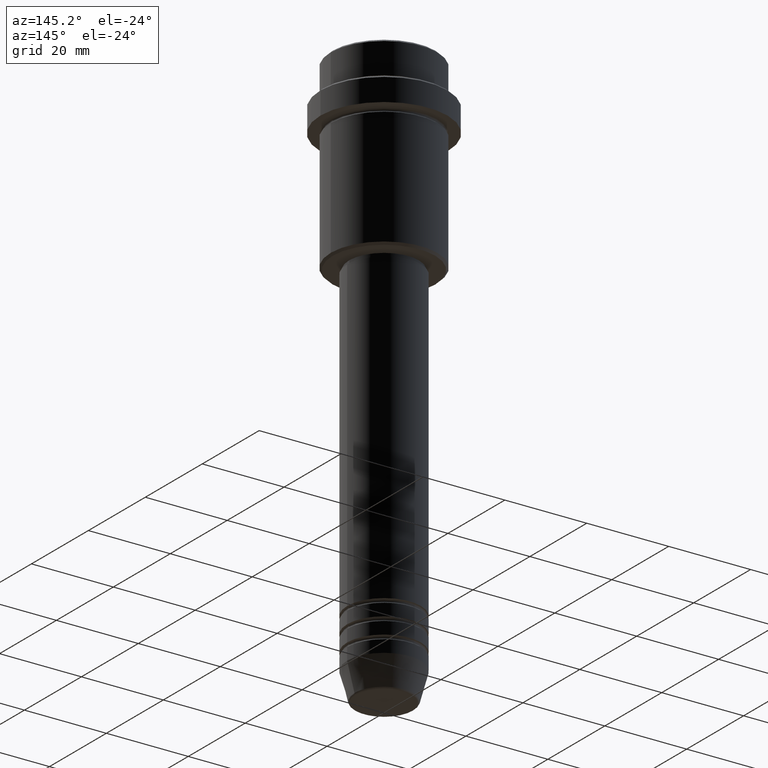
[diagram: clean part render]
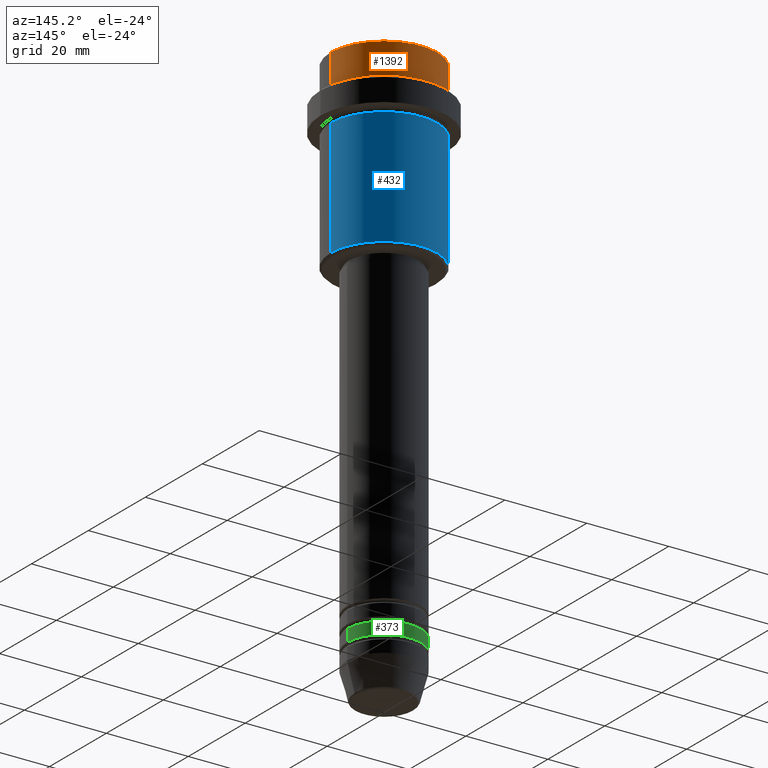
[diagram: same view with three faces highlighted in distinct colors, each labeled with its STEP entity id]
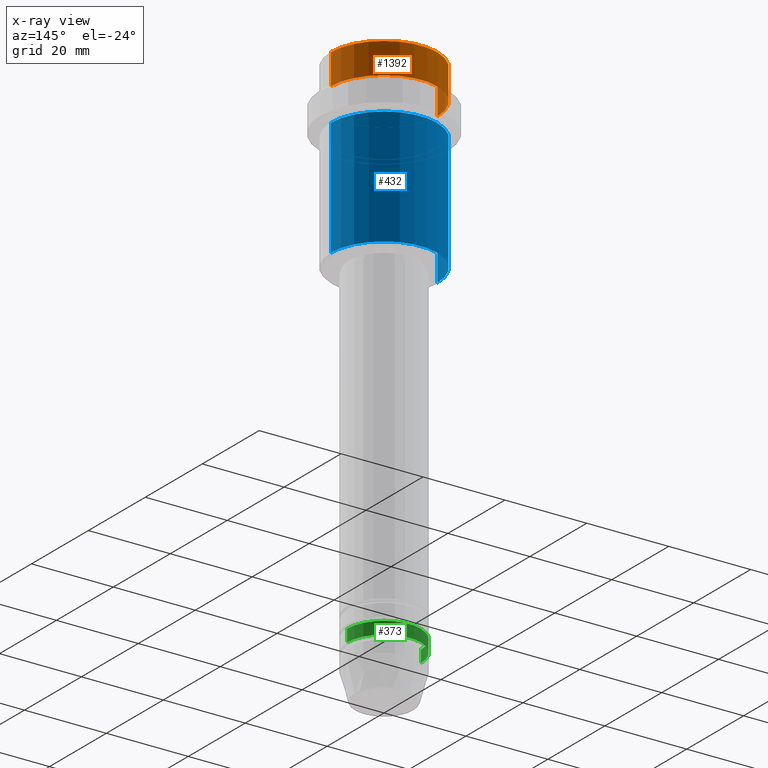
[diagram: x-ray of the same camera — body ghosted, the three highlighted faces saturated]
A machine part, auxiliary view with three faces highlighted in distinct colors.
The next image is the same camera in x-ray (body ghosted, the three faces saturated) — at least one of them is partly hidden behind the body in this view.
Their STEP definitions:

[orange] entity #1392 — the highlighted cylindrical surface (partial cylindrical patch) has radius 13 mm, axis along (-0, -0, 1).
#39 = DIRECTION ( 'NONE',  ( -0.000000000000000000, -0.000000000000000000, 1.000000000000000000 ) ) ;
#70 = VERTEX_POINT ( 'NONE', #1298 ) ;
#79 = AXIS2_PLACEMENT_3D ( 'NONE', #347, #1192, #1330 ) ;
#158 = CARTESIAN_POINT ( 'NONE',  ( -12.99999999999999822, 1.592040838891558898E-15, -7.999999999999998224 ) ) ;
#260 = VECTOR ( 'NONE', #1395, 1000.000000000000000 ) ;
#283 = ORIENTED_EDGE ( 'NONE', *, *, #849, .T. ) ;
#308 = AXIS2_PLACEMENT_3D ( 'NONE', #365, #39, #1351 ) ;
#343 = EDGE_CURVE ( 'NONE', #552, #70, #1195, .T. ) ;
#347 = CARTESIAN_POINT ( 'NONE',  ( 0.000000000000000000, 0.000000000000000000, 0.000000000000000000 ) ) ;
#365 = CARTESIAN_POINT ( 'NONE',  ( 0.000000000000000000, 0.000000000000000000, -7.999999999999998224 ) ) ;
#471 = VECTOR ( 'NONE', #1310, 1000.000000000000000 ) ;
#485 = FACE_OUTER_BOUND ( 'NONE', #950, .T. ) ;
#552 = VERTEX_POINT ( 'NONE', #582 ) ;
#582 = CARTESIAN_POINT ( 'NONE',  ( 12.99999999999999822, 0.000000000000000000, -7.999999999999998224 ) ) ;
#597 = EDGE_CURVE ( 'NONE', #552, #954, #830, .T. ) ;
#599 = CARTESIAN_POINT ( 'NONE',  ( 12.99999999999999822, 0.000000000000000000, 0.000000000000000000 ) ) ;
#649 = EDGE_CURVE ( 'NONE', #954, #777, #1413, .T. ) ;
#777 = VERTEX_POINT ( 'NONE', #911 ) ;
#780 = DIRECTION ( 'NONE',  ( 1.000000000000000000, 0.000000000000000000, 0.000000000000000000 ) ) ;
#830 = CIRCLE ( 'NONE', #308, 12.99999999999999822 ) ;
#849 = EDGE_CURVE ( 'NONE', #777, #70, #1312, .T. ) ;
#911 = CARTESIAN_POINT ( 'NONE',  ( -12.99999999999999822, 1.592040838891558898E-15, -0.4999999999999900080 ) ) ;
#920 = ORIENTED_EDGE ( 'NONE', *, *, #597, .T. ) ;
#950 = EDGE_LOOP ( 'NONE', ( #920, #1352, #283, #1177 ) ) ;
#954 = VERTEX_POINT ( 'NONE', #158 ) ;
#1079 = AXIS2_PLACEMENT_3D ( 'NONE', #1327, #1322, #780 ) ;
#1107 = CYLINDRICAL_SURFACE ( 'NONE', #79, 12.99999999999999822 ) ;
#1177 = ORIENTED_EDGE ( 'NONE', *, *, #343, .F. ) ;
#1192 = DIRECTION ( 'NONE',  ( -0.000000000000000000, -0.000000000000000000, 1.000000000000000000 ) ) ;
#1195 = LINE ( 'NONE', #599, #471 ) ;
#1298 = CARTESIAN_POINT ( 'NONE',  ( 12.99999999999999822, 0.000000000000000000, -0.4999999999999900080 ) ) ;
#1310 = DIRECTION ( 'NONE',  ( -0.000000000000000000, -0.000000000000000000, 1.000000000000000000 ) ) ;
#1312 = CIRCLE ( 'NONE', #1079, 12.99999999999999822 ) ;
#1322 = DIRECTION ( 'NONE',  ( 0.000000000000000000, 0.000000000000000000, -1.000000000000000000 ) ) ;
#1327 = CARTESIAN_POINT ( 'NONE',  ( 0.000000000000000000, 0.000000000000000000, -0.4999999999999900080 ) ) ;
#1330 = DIRECTION ( 'NONE',  ( 1.000000000000000000, 0.000000000000000000, 0.000000000000000000 ) ) ;
#1351 = DIRECTION ( 'NONE',  ( 1.000000000000000000, 0.000000000000000000, 0.000000000000000000 ) ) ;
#1352 = ORIENTED_EDGE ( 'NONE', *, *, #649, .T. ) ;
#1392 = ADVANCED_FACE ( 'NONE', ( #485 ), #1107, .T. ) ;
#1395 = DIRECTION ( 'NONE',  ( -0.000000000000000000, -0.000000000000000000, 1.000000000000000000 ) ) ;
#1406 = CARTESIAN_POINT ( 'NONE',  ( -12.99999999999999822, 1.592040838891558898E-15, 0.000000000000000000 ) ) ;
#1413 = LINE ( 'NONE', #1406, #260 ) ;

[blue] entity #432 — the highlighted cylindrical surface (partial cylindrical patch) has radius 13 mm, axis along (-0, -0, 1).
#82 = CARTESIAN_POINT ( 'NONE',  ( 0.000000000000000000, 0.000000000000000000, -16.00000000000000000 ) ) ;
#99 = LINE ( 'NONE', #857, #333 ) ;
#118 = AXIS2_PLACEMENT_3D ( 'NONE', #847, #1062, #323 ) ;
#139 = CARTESIAN_POINT ( 'NONE',  ( 0.000000000000000000, 0.000000000000000000, 0.000000000000000000 ) ) ;
#170 = EDGE_CURVE ( 'NONE', #1090, #895, #564, .T. ) ;
#201 = DIRECTION ( 'NONE',  ( -0.000000000000000000, -0.000000000000000000, 1.000000000000000000 ) ) ;
#206 = DIRECTION ( 'NONE',  ( 1.000000000000000000, 0.000000000000000000, 0.000000000000000000 ) ) ;
#323 = DIRECTION ( 'NONE',  ( -1.000000000000000000, 0.000000000000000000, 0.000000000000000000 ) ) ;
#333 = VECTOR ( 'NONE', #422, 1000.000000000000000 ) ;
#380 = AXIS2_PLACEMENT_3D ( 'NONE', #139, #860, #1231 ) ;
#422 = DIRECTION ( 'NONE',  ( -0.000000000000000000, -0.000000000000000000, 1.000000000000000000 ) ) ;
#432 = ADVANCED_FACE ( 'NONE', ( #1225 ), #756, .T. ) ;
#465 = CARTESIAN_POINT ( 'NONE',  ( -13.00000000000000000, 1.592040838891559095E-15, -44.50000000000002842 ) ) ;
#468 = ORIENTED_EDGE ( 'NONE', *, *, #1076, .F. ) ;
#564 = CIRCLE ( 'NONE', #1126, 13.00000000000000000 ) ;
#584 = EDGE_LOOP ( 'NONE', ( #925, #819, #622, #468 ) ) ;
#610 = CIRCLE ( 'NONE', #118, 13.00000000000000000 ) ;
#612 = VECTOR ( 'NONE', #1142, 1000.000000000000000 ) ;
#615 = VERTEX_POINT ( 'NONE', #621 ) ;
#621 = CARTESIAN_POINT ( 'NONE',  ( 13.00000000000000000, 0.000000000000000000, -44.50000000000002842 ) ) ;
#622 = ORIENTED_EDGE ( 'NONE', *, *, #170, .F. ) ;
#661 = EDGE_CURVE ( 'NONE', #1261, #895, #99, .T. ) ;
#714 = EDGE_CURVE ( 'NONE', #615, #1261, #610, .T. ) ;
#756 = CYLINDRICAL_SURFACE ( 'NONE', #380, 13.00000000000000000 ) ;
#757 = CARTESIAN_POINT ( 'NONE',  ( 13.00000000000000000, 0.000000000000000000, -16.00000000000000000 ) ) ;
#819 = ORIENTED_EDGE ( 'NONE', *, *, #661, .T. ) ;
#820 = CARTESIAN_POINT ( 'NONE',  ( 13.00000000000000000, 0.000000000000000000, 0.000000000000000000 ) ) ;
#847 = CARTESIAN_POINT ( 'NONE',  ( 0.000000000000000000, 0.000000000000000000, -44.50000000000002842 ) ) ;
#857 = CARTESIAN_POINT ( 'NONE',  ( -13.00000000000000000, 1.592040838891559095E-15, 0.000000000000000000 ) ) ;
#860 = DIRECTION ( 'NONE',  ( -0.000000000000000000, -0.000000000000000000, 1.000000000000000000 ) ) ;
#895 = VERTEX_POINT ( 'NONE', #899 ) ;
#899 = CARTESIAN_POINT ( 'NONE',  ( -13.00000000000000000, 1.592040838891559095E-15, -16.00000000000000000 ) ) ;
#925 = ORIENTED_EDGE ( 'NONE', *, *, #714, .T. ) ;
#933 = LINE ( 'NONE', #820, #612 ) ;
#1062 = DIRECTION ( 'NONE',  ( -0.000000000000000000, -0.000000000000000000, 1.000000000000000000 ) ) ;
#1076 = EDGE_CURVE ( 'NONE', #615, #1090, #933, .T. ) ;
#1090 = VERTEX_POINT ( 'NONE', #757 ) ;
#1126 = AXIS2_PLACEMENT_3D ( 'NONE', #82, #201, #206 ) ;
#1142 = DIRECTION ( 'NONE',  ( -0.000000000000000000, -0.000000000000000000, 1.000000000000000000 ) ) ;
#1225 = FACE_OUTER_BOUND ( 'NONE', #584, .T. ) ;
#1231 = DIRECTION ( 'NONE',  ( 1.000000000000000000, 0.000000000000000000, 0.000000000000000000 ) ) ;
#1261 = VERTEX_POINT ( 'NONE', #465 ) ;

[green] entity #373 — the highlighted cylindrical surface (partial cylindrical patch) has radius 9 mm, axis along (-0, -0, 1).
#38 = DIRECTION ( 'NONE',  ( 1.000000000000000000, 0.000000000000000000, 0.000000000000000000 ) ) ;
#45 = EDGE_CURVE ( 'NONE', #1301, #1112, #821, .T. ) ;
#47 = LINE ( 'NONE', #249, #652 ) ;
#66 = ORIENTED_EDGE ( 'NONE', *, *, #558, .T. ) ;
#90 = CARTESIAN_POINT ( 'NONE',  ( 0.000000000000000000, 0.000000000000000000, -125.9999999999998863 ) ) ;
#132 = DIRECTION ( 'NONE',  ( 1.000000000000000000, 0.000000000000000000, 0.000000000000000000 ) ) ;
#149 = DIRECTION ( 'NONE',  ( -0.000000000000000000, -0.000000000000000000, 1.000000000000000000 ) ) ;
#183 = DIRECTION ( 'NONE',  ( 1.000000000000000000, 0.000000000000000000, 0.000000000000000000 ) ) ;
#193 = CIRCLE ( 'NONE', #1289, 9.000000000000000000 ) ;
#204 = DIRECTION ( 'NONE',  ( -0.000000000000000000, -0.000000000000000000, 1.000000000000000000 ) ) ;
#249 = CARTESIAN_POINT ( 'NONE',  ( -9.000000000000000000, 1.102182119232617714E-15, 0.000000000000000000 ) ) ;
#280 = CIRCLE ( 'NONE', #1170, 9.000000000000000000 ) ;
#316 = CARTESIAN_POINT ( 'NONE',  ( -9.000000000000000000, 1.102182119232617714E-15, -125.9999999999998863 ) ) ;
#367 = ORIENTED_EDGE ( 'NONE', *, *, #1096, .F. ) ;
#373 = ADVANCED_FACE ( 'NONE', ( #1186 ), #763, .T. ) ;
#451 = EDGE_CURVE ( 'NONE', #1301, #1161, #280, .T. ) ;
#487 = CARTESIAN_POINT ( 'NONE',  ( 9.000000000000000000, 0.000000000000000000, 0.000000000000000000 ) ) ;
#558 = EDGE_CURVE ( 'NONE', #1161, #728, #47, .T. ) ;
#639 = CARTESIAN_POINT ( 'NONE',  ( -9.000000000000000000, 1.102182119232617714E-15, -128.9999999999998863 ) ) ;
#652 = VECTOR ( 'NONE', #1232, 1000.000000000000000 ) ;
#656 = ORIENTED_EDGE ( 'NONE', *, *, #451, .T. ) ;
#728 = VERTEX_POINT ( 'NONE', #316 ) ;
#763 = CYLINDRICAL_SURFACE ( 'NONE', #876, 9.000000000000000000 ) ;
#821 = LINE ( 'NONE', #487, #946 ) ;
#865 = CARTESIAN_POINT ( 'NONE',  ( 0.000000000000000000, 0.000000000000000000, -128.9999999999998863 ) ) ;
#876 = AXIS2_PLACEMENT_3D ( 'NONE', #906, #204, #132 ) ;
#906 = CARTESIAN_POINT ( 'NONE',  ( 0.000000000000000000, 0.000000000000000000, 0.000000000000000000 ) ) ;
#946 = VECTOR ( 'NONE', #149, 1000.000000000000000 ) ;
#1096 = EDGE_CURVE ( 'NONE', #1112, #728, #193, .T. ) ;
#1112 = VERTEX_POINT ( 'NONE', #1297 ) ;
#1136 = EDGE_LOOP ( 'NONE', ( #656, #66, #367, #1267 ) ) ;
#1161 = VERTEX_POINT ( 'NONE', #639 ) ;
#1170 = AXIS2_PLACEMENT_3D ( 'NONE', #865, #1296, #38 ) ;
#1186 = FACE_OUTER_BOUND ( 'NONE', #1136, .T. ) ;
#1232 = DIRECTION ( 'NONE',  ( -0.000000000000000000, -0.000000000000000000, 1.000000000000000000 ) ) ;
#1267 = ORIENTED_EDGE ( 'NONE', *, *, #45, .F. ) ;
#1289 = AXIS2_PLACEMENT_3D ( 'NONE', #90, #1411, #183 ) ;
#1296 = DIRECTION ( 'NONE',  ( -0.000000000000000000, -0.000000000000000000, 1.000000000000000000 ) ) ;
#1297 = CARTESIAN_POINT ( 'NONE',  ( 9.000000000000000000, 0.000000000000000000, -125.9999999999998863 ) ) ;
#1301 = VERTEX_POINT ( 'NONE', #1311 ) ;
#1311 = CARTESIAN_POINT ( 'NONE',  ( 9.000000000000000000, 0.000000000000000000, -128.9999999999998863 ) ) ;
#1411 = DIRECTION ( 'NONE',  ( -0.000000000000000000, -0.000000000000000000, 1.000000000000000000 ) ) ;